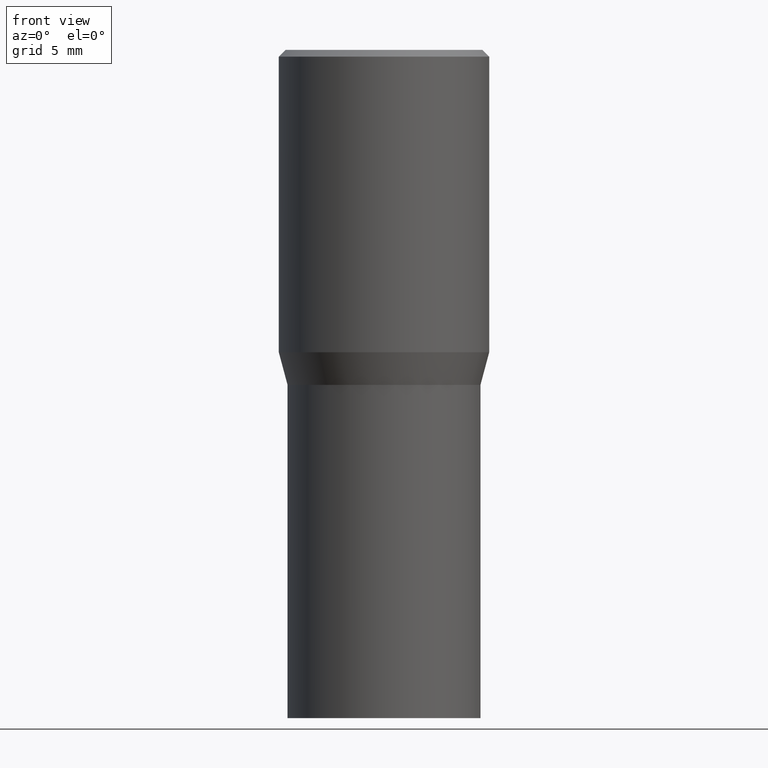
[diagram: clean part render]
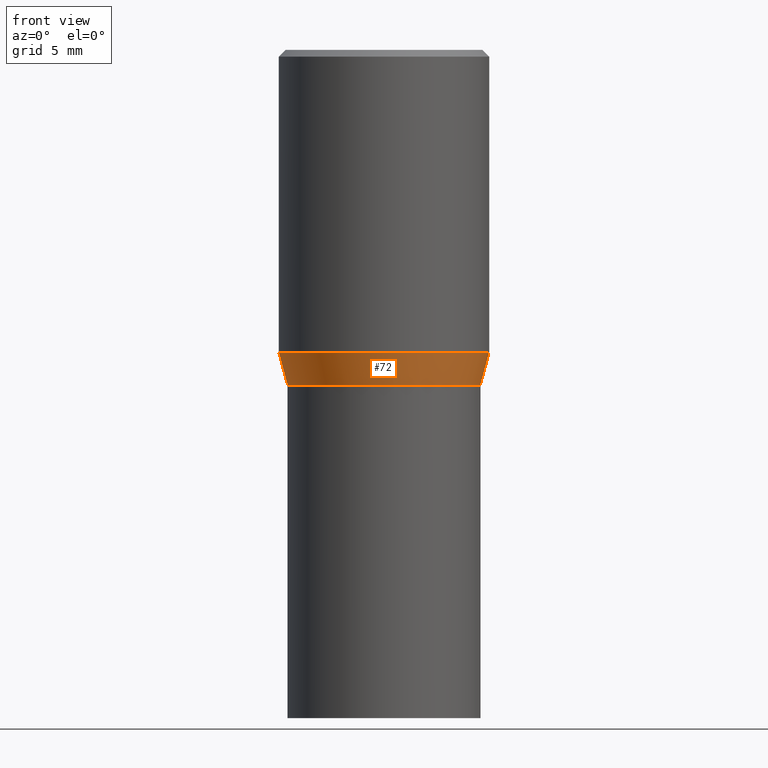
[diagram: same view with one face highlighted and labeled with its STEP entity id]
A machine part, front view. The second image highlights one B-rep face of the part: STEP entity #72.
In plain terms, the highlighted conical surface has half-angle 15 deg.
Its self-contained STEP definition (entity closure, byte-faithful):
#4 = CARTESIAN_POINT ( 'NONE',  ( -0.2165500000000000203, -8.890793087369993447E-16, -0.7520000000000001128 ) ) ;
#28 = AXIS2_PLACEMENT_3D ( 'NONE', #461, #104, #372 ) ;
#31 = CARTESIAN_POINT ( 'NONE',  ( 1.659654580432621677E-29, -2.369546886817807077E-15, -0.6786652016312719748 ) ) ;
#72 = ADVANCED_FACE ( 'NONE', ( #381 ), #367, .T. ) ;
#78 = DIRECTION ( 'NONE',  ( 1.000000000000000000, -6.982962677686266711E-15, 0.000000000000000000 ) ) ;
#85 = ORIENTED_EDGE ( 'NONE', *, *, #128, .F. ) ;
#98 = VECTOR ( 'NONE', #192, 39.37007874015748143 ) ;
#104 = DIRECTION ( 'NONE',  ( -2.445468806185136597E-29, 3.491481338843145583E-15, 1.000000000000000000 ) ) ;
#115 = DIRECTION ( 'NONE',  ( -2.445468806185136597E-29, 3.491481338843145583E-15, 1.000000000000000000 ) ) ;
#117 = CARTESIAN_POINT ( 'NONE',  ( 1.838992542251222813E-29, -2.625593966810045497E-15, -0.7520000000000001128 ) ) ;
#123 = ORIENTED_EDGE ( 'NONE', *, *, #241, .T. ) ;
#126 = VERTEX_POINT ( 'NONE', #207 ) ;
#128 = EDGE_CURVE ( 'NONE', #126, #438, #345, .T. ) ;
#145 = LINE ( 'NONE', #250, #335 ) ;
#147 = AXIS2_PLACEMENT_3D ( 'NONE', #31, #462, #78 ) ;
#187 = ORIENTED_EDGE ( 'NONE', *, *, #362, .T. ) ;
#192 = DIRECTION ( 'NONE',  ( -0.2588190451025218497, 5.211531920934553408E-15, 0.9659258262890679791 ) ) ;
#207 = CARTESIAN_POINT ( 'NONE',  ( -0.2361999999999999933, -6.912449449524502887E-16, -0.6786652016312719748 ) ) ;
#209 = CIRCLE ( 'NONE', #390, 0.2165500000000000203 ) ;
#224 = DIRECTION ( 'NONE',  ( 1.000000000000000000, -6.982962677686266711E-15, 0.000000000000000000 ) ) ;
#233 = VERTEX_POINT ( 'NONE', #4 ) ;
#241 = EDGE_CURVE ( 'NONE', #338, #438, #145, .T. ) ;
#250 = CARTESIAN_POINT ( 'NONE',  ( 0.2165500000000000203, -4.137754534663007109E-15, -0.7520000000000001128 ) ) ;
#289 = DIRECTION ( 'NONE',  ( 0.2588190451025218497, 1.565188264969618221E-15, 0.9659258262890679791 ) ) ;
#291 = CARTESIAN_POINT ( 'NONE',  ( 0.2165500000000000203, -4.137754534663007109E-15, -0.7520000000000001128 ) ) ;
#295 = LINE ( 'NONE', #439, #98 ) ;
#335 = VECTOR ( 'NONE', #289, 39.37007874015748143 ) ;
#338 = VERTEX_POINT ( 'NONE', #291 ) ;
#345 = CIRCLE ( 'NONE', #147, 0.2361999999999999933 ) ;
#362 = EDGE_CURVE ( 'NONE', #233, #338, #209, .T. ) ;
#367 = CONICAL_SURFACE ( 'NONE', #28, 0.2165500000000000203, 0.2617993877991505736 ) ;
#369 = EDGE_LOOP ( 'NONE', ( #371, #187, #123, #85 ) ) ;
#371 = ORIENTED_EDGE ( 'NONE', *, *, #435, .F. ) ;
#372 = DIRECTION ( 'NONE',  ( 1.000000000000000000, -6.982962677686266711E-15, 0.000000000000000000 ) ) ;
#381 = FACE_OUTER_BOUND ( 'NONE', #369, .T. ) ;
#390 = AXIS2_PLACEMENT_3D ( 'NONE', #117, #115, #224 ) ;
#435 = EDGE_CURVE ( 'NONE', #233, #126, #295, .T. ) ;
#438 = VERTEX_POINT ( 'NONE', #445 ) ;
#439 = CARTESIAN_POINT ( 'NONE',  ( -0.2165500000000000203, -1.086913672521548598E-15, -0.7520000000000001128 ) ) ;
#445 = CARTESIAN_POINT ( 'NONE',  ( 0.2361999999999999933, -4.018922671287303208E-15, -0.6786652016312719748 ) ) ;
#461 = CARTESIAN_POINT ( 'NONE',  ( 1.838992542251222813E-29, -2.625593966810045497E-15, -0.7520000000000001128 ) ) ;
#462 = DIRECTION ( 'NONE',  ( -2.445468806185136597E-29, 3.491481338843145583E-15, 1.000000000000000000 ) ) ;